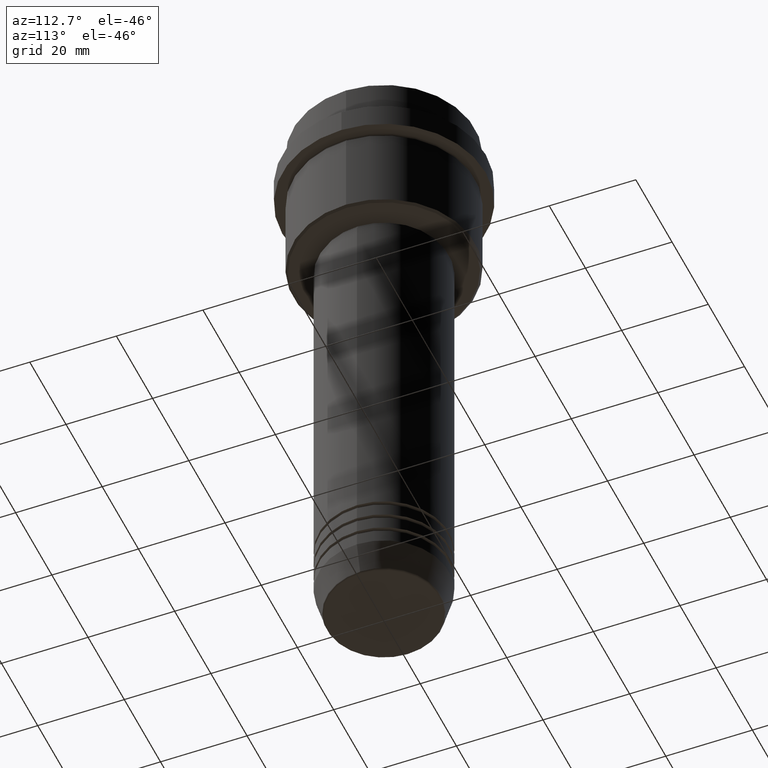
[diagram: clean part render]
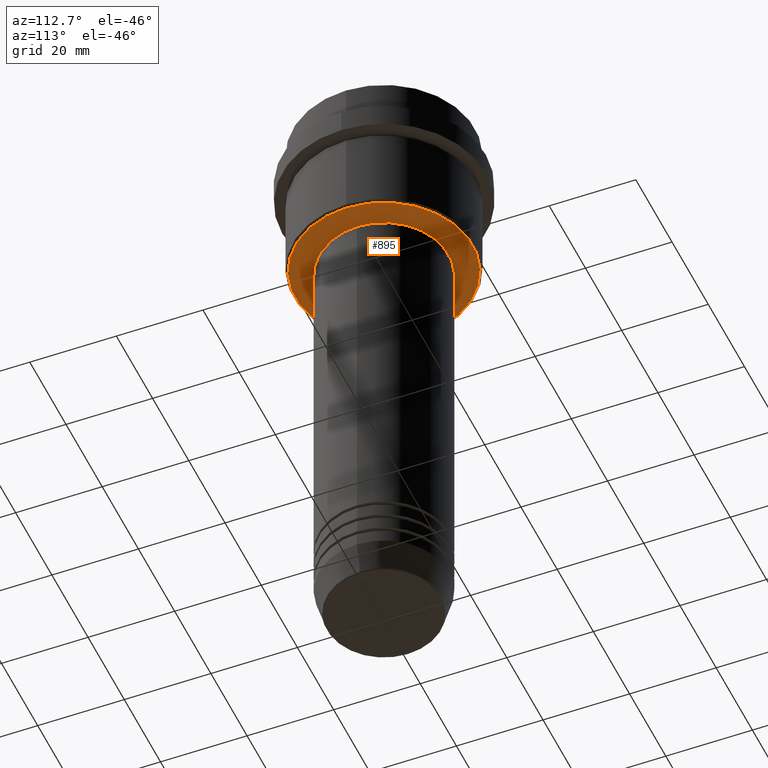
[diagram: same view with one face highlighted and labeled with its STEP entity id]
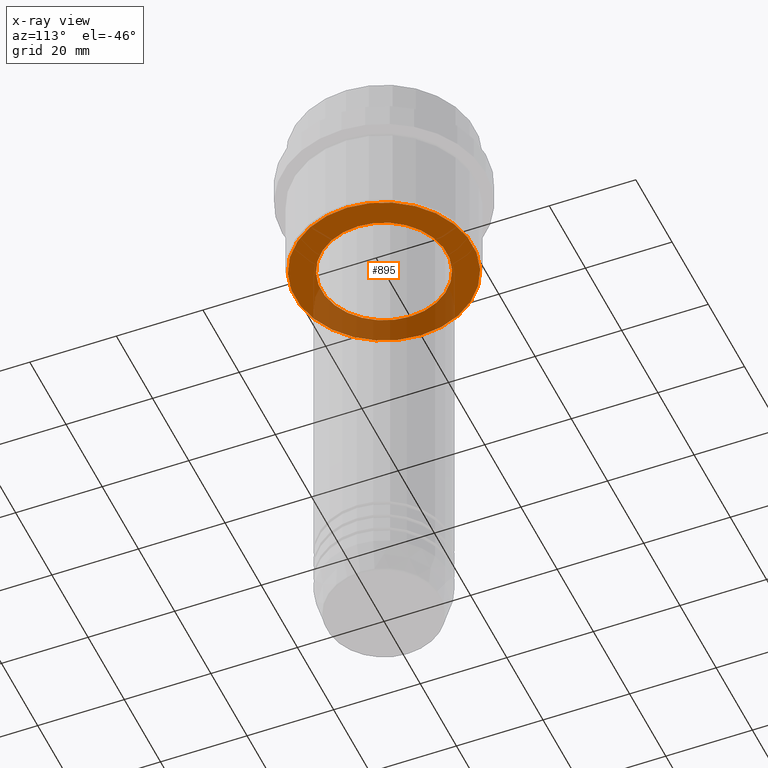
[diagram: x-ray of the same camera — body ghosted, the highlighted face saturated]
A machine part, auxiliary view. The second image highlights one B-rep face of the part: STEP entity #895.
The next image is the same camera in x-ray: the body ghosted, the highlighted face saturated — about 32% of this face is hidden behind the body in this view.
In plain terms, the highlighted planar face has unit normal (0, 0, -1).
Its self-contained STEP definition (entity closure, byte-faithful):
#82 = CARTESIAN_POINT ( 'NONE',  ( 20.50000000000001776, 0.000000000000000000, -35.99999999999999289 ) ) ;
#102 = CIRCLE ( 'NONE', #355, 14.49999999999999467 ) ;
#109 = EDGE_LOOP ( 'NONE', ( #1281, #476 ) ) ;
#125 = FACE_BOUND ( 'NONE', #109, .T. ) ;
#228 = ORIENTED_EDGE ( 'NONE', *, *, #360, .T. ) ;
#236 = FACE_OUTER_BOUND ( 'NONE', #1212, .T. ) ;
#265 = EDGE_CURVE ( 'NONE', #898, #323, #1197, .T. ) ;
#272 = CARTESIAN_POINT ( 'NONE',  ( 0.000000000000000000, 0.000000000000000000, -35.99999999999999289 ) ) ;
#287 = CARTESIAN_POINT ( 'NONE',  ( 0.000000000000000000, 0.000000000000000000, -35.99999999999999289 ) ) ;
#312 = DIRECTION ( 'NONE',  ( -0.000000000000000000, -0.000000000000000000, 1.000000000000000000 ) ) ;
#323 = VERTEX_POINT ( 'NONE', #1274 ) ;
#355 = AXIS2_PLACEMENT_3D ( 'NONE', #272, #616, #1271 ) ;
#360 = EDGE_CURVE ( 'NONE', #323, #898, #1316, .T. ) ;
#410 = VERTEX_POINT ( 'NONE', #792 ) ;
#476 = ORIENTED_EDGE ( 'NONE', *, *, #1368, .T. ) ;
#511 = AXIS2_PLACEMENT_3D ( 'NONE', #1352, #312, #1389 ) ;
#514 = DIRECTION ( 'NONE',  ( 0.000000000000000000, 0.000000000000000000, -1.000000000000000000 ) ) ;
#570 = PLANE ( 'NONE',  #664 ) ;
#616 = DIRECTION ( 'NONE',  ( -0.000000000000000000, -0.000000000000000000, 1.000000000000000000 ) ) ;
#656 = DIRECTION ( 'NONE',  ( -1.000000000000000000, 0.000000000000000000, 0.000000000000000000 ) ) ;
#660 = AXIS2_PLACEMENT_3D ( 'NONE', #1168, #1403, #1046 ) ;
#664 = AXIS2_PLACEMENT_3D ( 'NONE', #997, #894, #687 ) ;
#687 = DIRECTION ( 'NONE',  ( -1.000000000000000000, 0.000000000000000000, -0.000000000000000000 ) ) ;
#695 = AXIS2_PLACEMENT_3D ( 'NONE', #287, #514, #656 ) ;
#723 = CIRCLE ( 'NONE', #511, 14.49999999999999467 ) ;
#776 = EDGE_CURVE ( 'NONE', #410, #1000, #723, .T. ) ;
#792 = CARTESIAN_POINT ( 'NONE',  ( 14.49999999999999467, 0.000000000000000000, -35.99999999999999289 ) ) ;
#894 = DIRECTION ( 'NONE',  ( 0.000000000000000000, 0.000000000000000000, -1.000000000000000000 ) ) ;
#895 = ADVANCED_FACE ( 'NONE', ( #236, #125 ), #570, .T. ) ;
#898 = VERTEX_POINT ( 'NONE', #82 ) ;
#997 = CARTESIAN_POINT ( 'NONE',  ( 0.000000000000000000, 21.00000000000000000, -35.99999999999999289 ) ) ;
#998 = CARTESIAN_POINT ( 'NONE',  ( -14.49999999999999467, 1.775737858763661620E-15, -35.99999999999999289 ) ) ;
#1000 = VERTEX_POINT ( 'NONE', #998 ) ;
#1038 = ORIENTED_EDGE ( 'NONE', *, *, #265, .T. ) ;
#1046 = DIRECTION ( 'NONE',  ( -1.000000000000000000, 0.000000000000000000, 0.000000000000000000 ) ) ;
#1168 = CARTESIAN_POINT ( 'NONE',  ( 0.000000000000000000, 0.000000000000000000, -35.99999999999999289 ) ) ;
#1197 = CIRCLE ( 'NONE', #660, 20.50000000000001776 ) ;
#1212 = EDGE_LOOP ( 'NONE', ( #1038, #228 ) ) ;
#1271 = DIRECTION ( 'NONE',  ( 1.000000000000000000, 0.000000000000000000, 0.000000000000000000 ) ) ;
#1274 = CARTESIAN_POINT ( 'NONE',  ( -20.50000000000001776, 2.541142108230759057E-15, -35.99999999999999289 ) ) ;
#1281 = ORIENTED_EDGE ( 'NONE', *, *, #776, .T. ) ;
#1316 = CIRCLE ( 'NONE', #695, 20.50000000000001776 ) ;
#1352 = CARTESIAN_POINT ( 'NONE',  ( 0.000000000000000000, 0.000000000000000000, -35.99999999999999289 ) ) ;
#1368 = EDGE_CURVE ( 'NONE', #1000, #410, #102, .T. ) ;
#1389 = DIRECTION ( 'NONE',  ( 1.000000000000000000, 0.000000000000000000, 0.000000000000000000 ) ) ;
#1403 = DIRECTION ( 'NONE',  ( 0.000000000000000000, 0.000000000000000000, -1.000000000000000000 ) ) ;